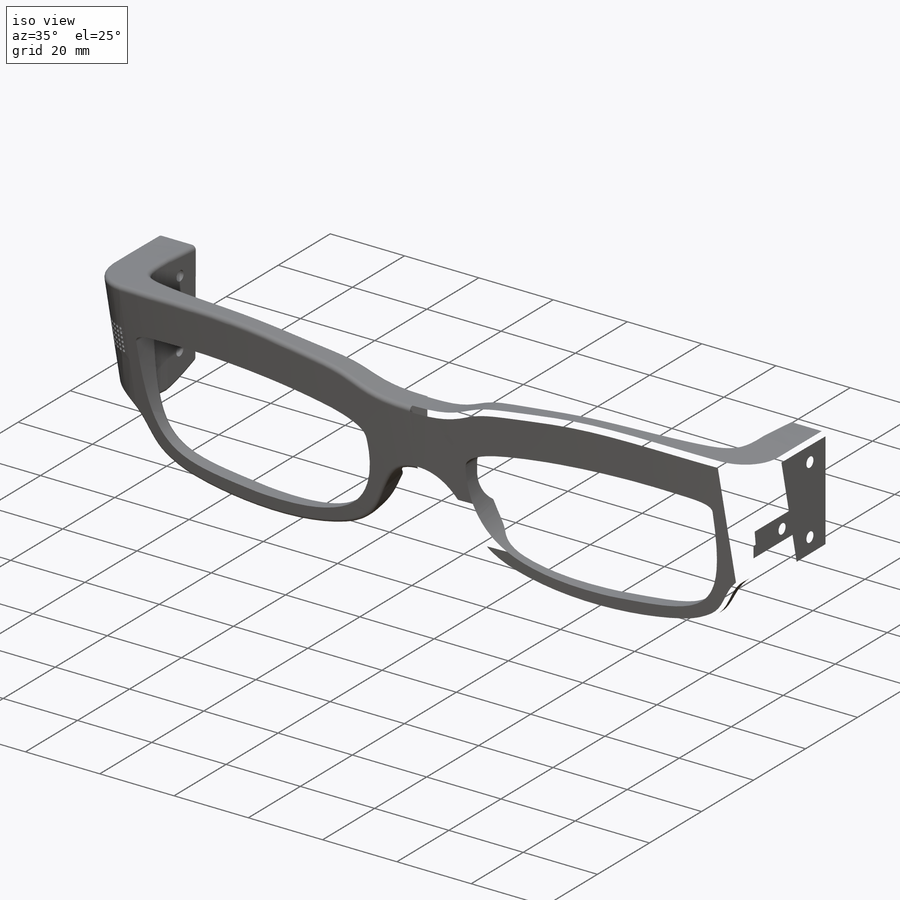
[diagram: iso view]
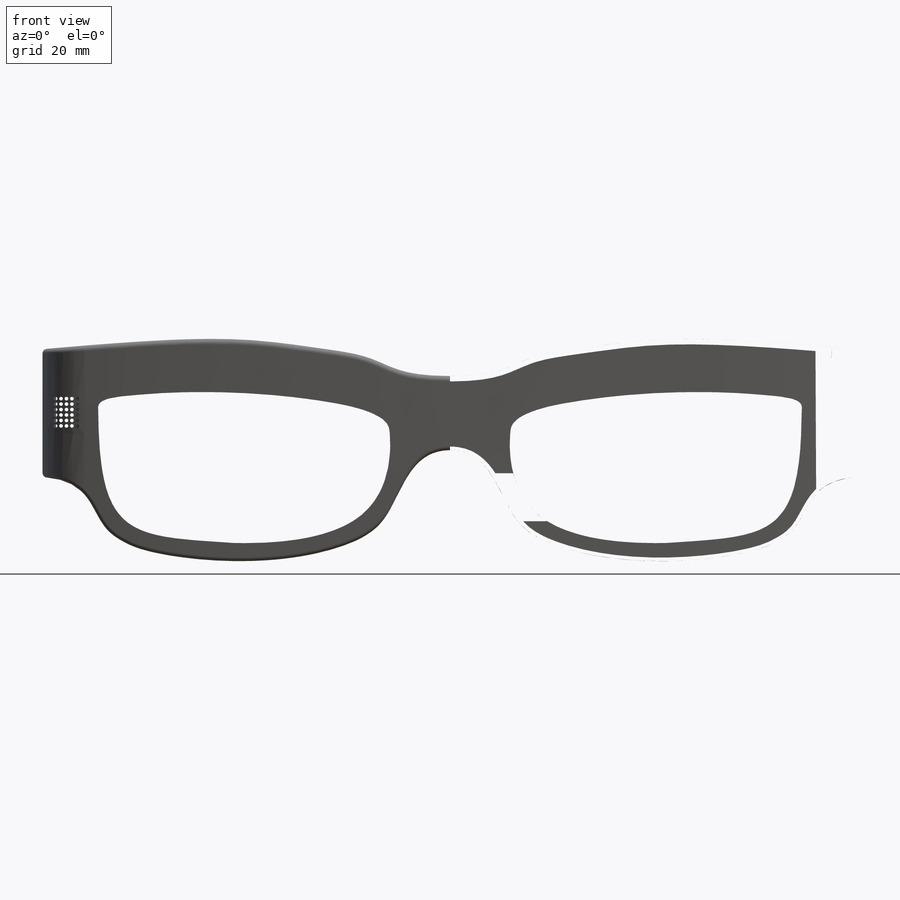
[diagram: front view]
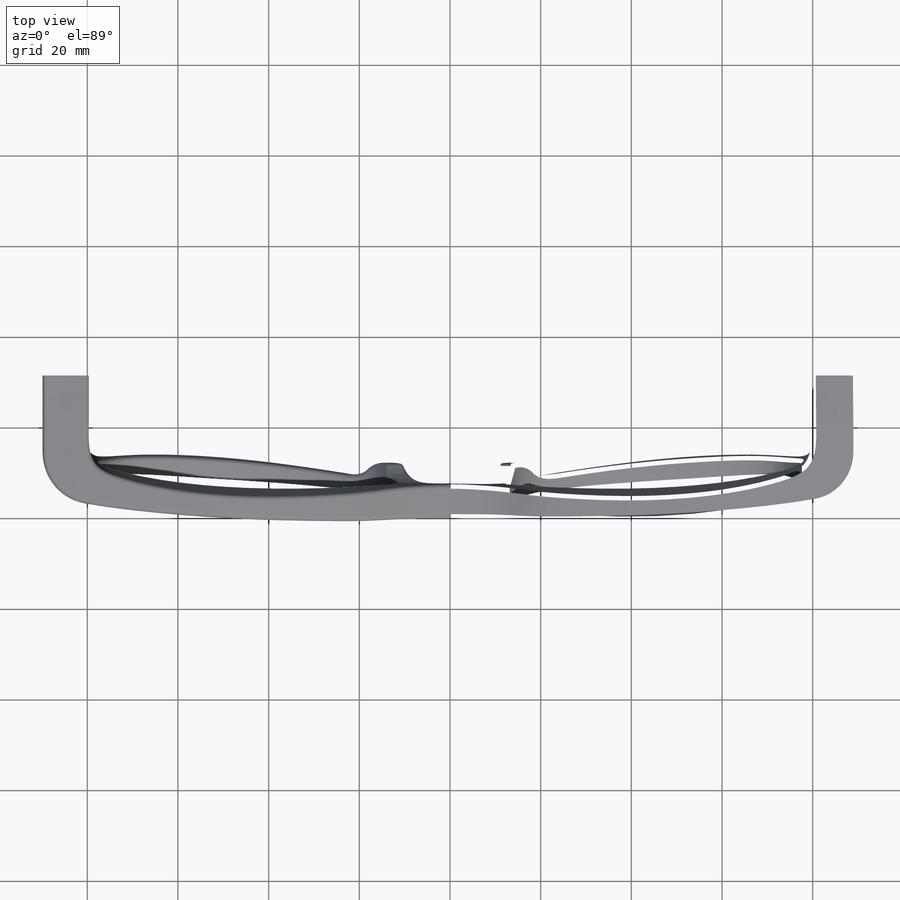
[diagram: top view]
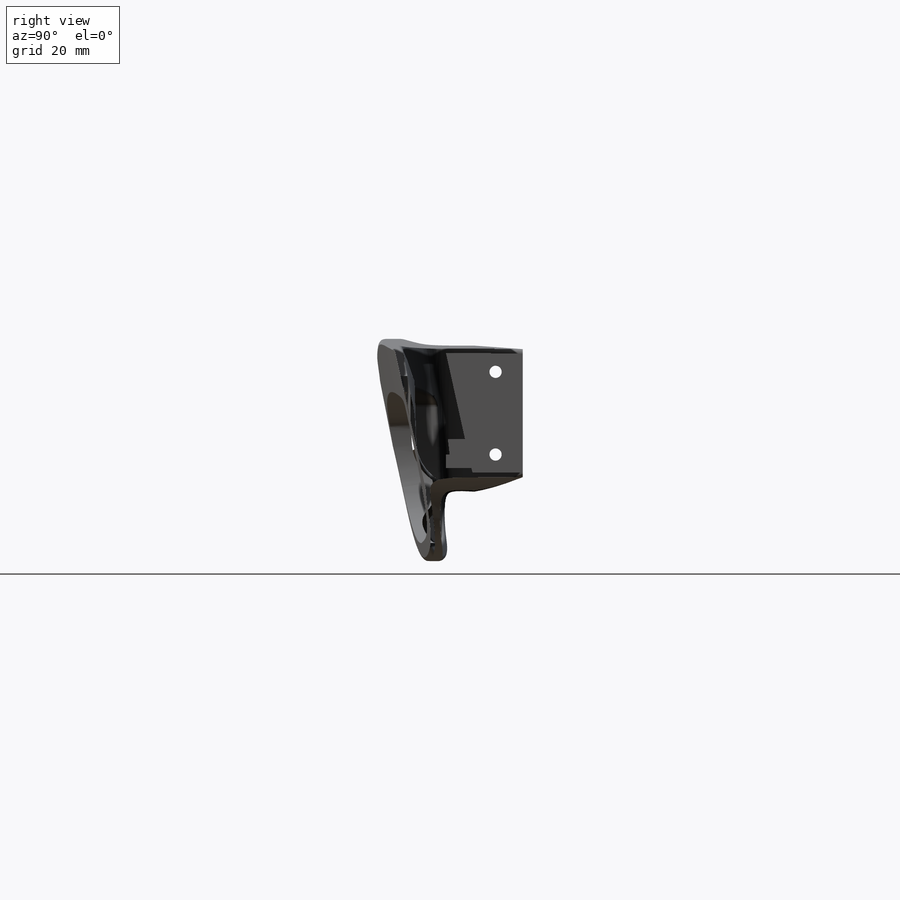
[diagram: right view]
SOLIDWORKS PART (.sldprt)
format: sldprt  version: not decoded by parser v0  size: 2,377,216 bytes
history: native  units: mm
features: sketch x18, fillet x9, plane x6, cut_extrude x4, mirror x4, extrude x2, material x1, sweep x1 (+12 scaffold rows collapsed)
feature tree (57):
  scaffold x12  (default folders/planes/origin — collapsed)
  material  "Alumina 99.9%"
  sketch  "Sketch1"  dims[D1=4.0mm]
  extrude  "Boss-Extrude1"  Depth=30mm
  sketch  "Sketch2"  dims[D1=8.0mm]
  sketch  "Sketch4"  dims[D1=8.0mm D2=~53.495025mm]
  sketch  "3DSketch1"
  plane  "Plane1"
  plane  "Plane2"
  plane  "基准面1"  Offset=6mm
  plane  "基准面2"  Offset=28mm
  sketch  "Sketch8"
  plane  "Plane3"
  plane  "Plane5"
  sketch  "Sketch23"
  sketch  "Sketch24"
  sketch  "Sketch25"
  fillet  "Fillet3"  Radius=11mm
  sketch  "Sketch28"  dims[D1=10.0mm]
  extrude  "Boss-Extrude2"  Depth=24mm
  cut_extrude  "Cut-Extrude3"  [1 undecoded]
  sketch  "Sketch1<3>"  dims[D1=24.0mm D2=24.0mm]
  fillet  "Fillet4"  Radius=10mm
  fillet  "Fillet5"  Radius=5mm
  fillet  "Fillet6"  Radius=1mm
  sketch  "3DSketch4"
  fillet  "Fillet7"  Radius=1mm
  fillet  "Fillet17"  Radius=1mm
  sketch  "草图1"
  sketch  "3D草图5"
  sweep  "切除-扫描1"
  sketch  "草图2"  dims[c1.D1=4.0mm c1.D2=12.0mm c1.D3=1.0mm c1.D4=2.0mm c2.D1=1.0mm c2.D2=2.0mm c2.D3=6.0mm c2.D4=1.0mm c2.D5=2.0mm c3.D1=2.0mm c3.D2=2.0mm c3.D3=~5.506998mm c4.D3=~179.76873deg c5.D3=~5.506998mm c6.D3=~0.23127deg c7.D3=2.5mm c7.D4=4.0mm c7.D5=3.0mm c7.D6=5.0mm c7.D7=2.5mm c7.D8=5.0mm c7.D9=12.0mm]
  cut_extrude  "切除-拉伸1"  Depth=17mm
  sketch  "草图3"  dims[D1=2.7mm D2=6.0mm D3=5.0mm D4=5.0mm]
  cut_extrude  "切除-拉伸3"  [1 undecoded]
  sketch  "草图6"
  sketch  "草图8"
  sketch  "草图9"  dims[D1=0.8mm D4=2.4mm D2=5.0 D3=6.0]
  cut_extrude  "切除-拉伸4"  [1 undecoded]
  fillet  "Fillet20"  Radius=1mm
  fillet  "Fillet21"  Radius=1mm
  fillet  "Fillet22"  Radius=1mm
  mirror  "Mirror1"
  mirror  "ModelUUID"
  mirror  "UUID"
  mirror  "ModelUUID"
decode coverage: 20 of 38 modeling features carry decoded parameters
note: ~ marks probable driven/reference dimensions
note: 3 parameter values undecoded
summary: no parameter record found for 3 features
note: suppression state not decoded; provenance and decode notes live in map.json
